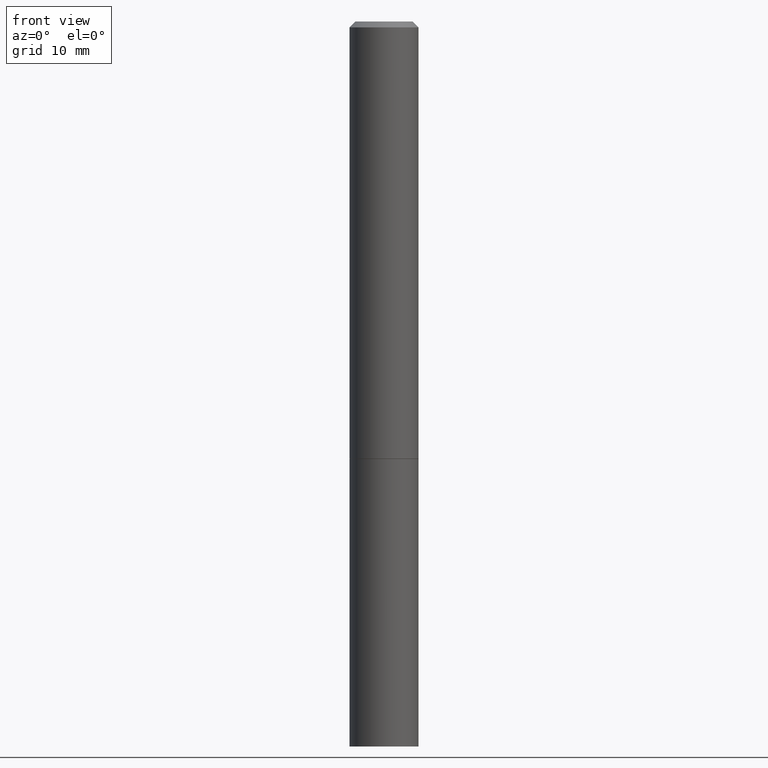
[diagram: clean part render]
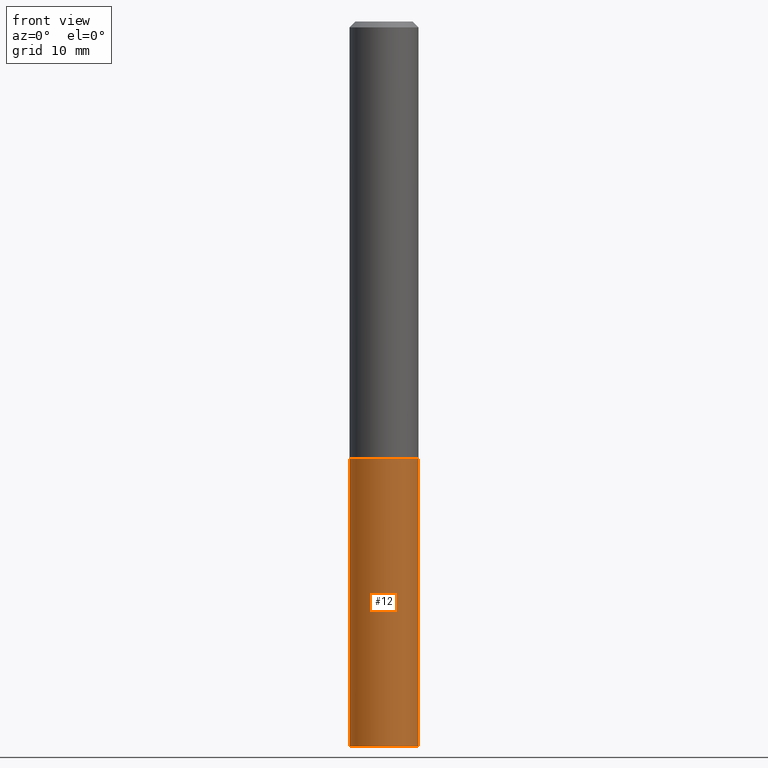
[diagram: same view with one face highlighted and labeled with its STEP entity id]
A machine part, front view. The second image highlights one B-rep face of the part: STEP entity #12.
In plain terms, the highlighted cylindrical surface (edge-blend (fillet) strip) has radius 2.9997 mm, axis along (-0, 0, 1).
Its self-contained STEP definition (entity closure, byte-faithful):
#12 = ADVANCED_FACE ( 'NONE', ( #230 ), #159, .T. ) ;
#16 = LINE ( 'NONE', #128, #46 ) ;
#24 = EDGE_CURVE ( 'NONE', #259, #223, #74, .T. ) ;
#38 = ORIENTED_EDGE ( 'NONE', *, *, #158, .T. ) ;
#43 = ORIENTED_EDGE ( 'NONE', *, *, #229, .T. ) ;
#46 = VECTOR ( 'NONE', #233, 39.37007874015748143 ) ;
#50 = CARTESIAN_POINT ( 'NONE',  ( -0.1180999999999999966, -6.102437652888322939E-15, -2.480300000000000171 ) ) ;
#52 = CARTESIAN_POINT ( 'NONE',  ( 0.1180999999999999966, -9.484609056967403598E-15, -2.480300000000000171 ) ) ;
#60 = ORIENTED_EDGE ( 'NONE', *, *, #24, .F. ) ;
#73 = CIRCLE ( 'NONE', #349, 0.1180999999999999966 ) ;
#74 = LINE ( 'NONE', #157, #78 ) ;
#78 = VECTOR ( 'NONE', #298, 39.37007874015748143 ) ;
#102 = DIRECTION ( 'NONE',  ( 1.000000000000000000, -6.982962677686265133E-15, 0.000000000000000000 ) ) ;
#121 = ORIENTED_EDGE ( 'NONE', *, *, #146, .F. ) ;
#128 = CARTESIAN_POINT ( 'NONE',  ( 0.1180999999999999966, -8.246878922347480654E-16, 5.758764772215000440E-30 ) ) ;
#146 = EDGE_CURVE ( 'NONE', #223, #317, #280, .T. ) ;
#148 = EDGE_LOOP ( 'NONE', ( #60, #43, #38, #121 ) ) ;
#155 = AXIS2_PLACEMENT_3D ( 'NONE', #351, #235, #209 ) ;
#157 = CARTESIAN_POINT ( 'NONE',  ( -0.1180999999999999966, 8.391509709326782957E-16, -5.809262341591043784E-30 ) ) ;
#158 = EDGE_CURVE ( 'NONE', #221, #317, #16, .T. ) ;
#159 = CYLINDRICAL_SURFACE ( 'NONE', #155, 0.1180999999999999966 ) ;
#189 = AXIS2_PLACEMENT_3D ( 'NONE', #236, #264, #102 ) ;
#193 = DIRECTION ( 'NONE',  ( -2.445468806185136597E-29, 3.491481338843145583E-15, 1.000000000000000000 ) ) ;
#209 = DIRECTION ( 'NONE',  ( 1.000000000000000000, -6.982962677686266711E-15, 4.876176775795936353E-29 ) ) ;
#221 = VERTEX_POINT ( 'NONE', #52 ) ;
#223 = VERTEX_POINT ( 'NONE', #304 ) ;
#229 = EDGE_CURVE ( 'NONE', #259, #221, #73, .T. ) ;
#230 = FACE_OUTER_BOUND ( 'NONE', #148, .T. ) ;
#233 = DIRECTION ( 'NONE',  ( -2.445468806185136877E-29, 3.491481338843145188E-15, 1.000000000000000000 ) ) ;
#235 = DIRECTION ( 'NONE',  ( -2.445468806185136597E-29, 3.491481338843145583E-15, 1.000000000000000000 ) ) ;
#236 = CARTESIAN_POINT ( 'NONE',  ( 3.658421334052965286E-29, -5.223256082909346937E-15, -1.496000000000000441 ) ) ;
#259 = VERTEX_POINT ( 'NONE', #50 ) ;
#264 = DIRECTION ( 'NONE',  ( -2.445468806185136597E-29, 3.491481338843145583E-15, 1.000000000000000000 ) ) ;
#270 = DIRECTION ( 'NONE',  ( 1.000000000000000000, -6.982962677686273021E-15, 0.000000000000000000 ) ) ;
#280 = CIRCLE ( 'NONE', #189, 0.1180999999999999966 ) ;
#298 = DIRECTION ( 'NONE',  ( -2.445468806185136877E-29, 3.491481338843145188E-15, 1.000000000000000000 ) ) ;
#303 = CARTESIAN_POINT ( 'NONE',  ( 0.1180999999999999966, -6.047943975144094411E-15, -1.496000000000000441 ) ) ;
#304 = CARTESIAN_POINT ( 'NONE',  ( -0.1180999999999999966, -6.102437652888322939E-15, -1.496000000000000441 ) ) ;
#305 = CARTESIAN_POINT ( 'NONE',  ( 6.065496279980994755E-29, -8.659921164732655335E-15, -2.480300000000000171 ) ) ;
#317 = VERTEX_POINT ( 'NONE', #303 ) ;
#349 = AXIS2_PLACEMENT_3D ( 'NONE', #305, #193, #270 ) ;
#351 = CARTESIAN_POINT ( 'NONE',  ( 0.000000000000000000, 0.000000000000000000, 0.000000000000000000 ) ) ;